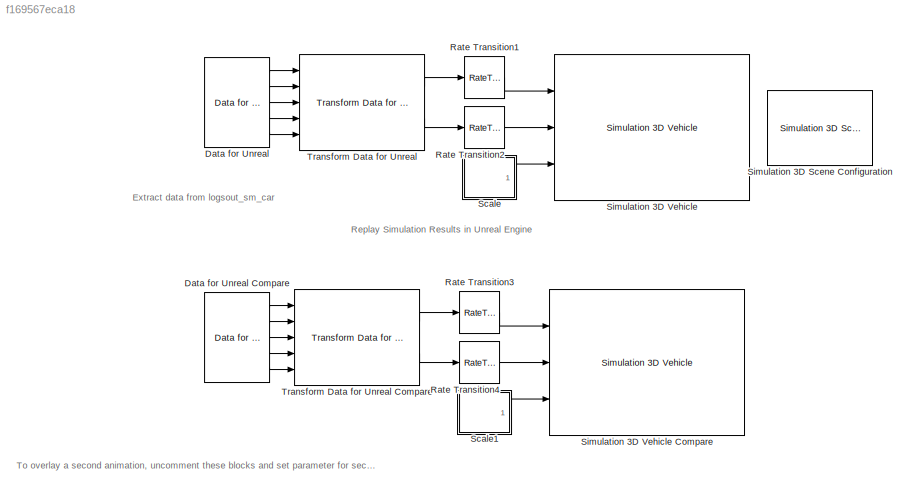
MODEL slx_f169567eca18
KIND model
CONFIG AbsTol = 1e-3
CONFIG EnableMultiTasking = on
CONFIG FixedStep = auto
CONFIG InitFcn = if (~exist('unreal_timeseries','var')) \n  if exist('logsout_sm_car','var')\n     unreal_timeseries = logsout_sm_car.get('Unreal_Timeseries')\n  else\n     error('Data missing from workspace: unreal_timeseries');\n  end\nend\n
CONFIG MaxStep = auto
CONFIG MinStep = auto
CONFIG RelTol = 1e-3
CONFIG SampleTimeConstraint = Unconstrained
CONFIG SolverName = VariableStepAuto
CONFIG StartTime = 0.0
CONFIG StopTime = 25
BLOCK [Reference] Data for Unreal  REF=Vehicle_Visualization/Data for Unreal
From Workspace
  AttributesFormatString = %<unreal_data>
  Ports = [0, 5]
  SourceBlock = Vehicle_Visualization/Data for Unreal\nFrom Workspace
  SourceType = Timeseries data for replay
BLOCK [Reference] Data for Unreal Compare  REF=Vehicle_Visualization/Data for Unreal
From Workspace
  AttributesFormatString = %<unreal_data>
  Commented = on
  Ports = [0, 5]
  SourceBlock = Vehicle_Visualization/Data for Unreal\nFrom Workspace
  SourceType = Timeseries data for replay
BLOCK [RateTransition] Rate Transition1
  Deterministic = off
  OutPortSampleTime = 0.03
BLOCK [RateTransition] Rate Transition2
  Deterministic = off
  OutPortSampleTime = 0.03
BLOCK [RateTransition] Rate Transition3
  Commented = on
  Deterministic = off
  OutPortSampleTime = 0.03
BLOCK [RateTransition] Rate Transition4
  Commented = on
  Deterministic = off
  OutPortSampleTime = 0.03
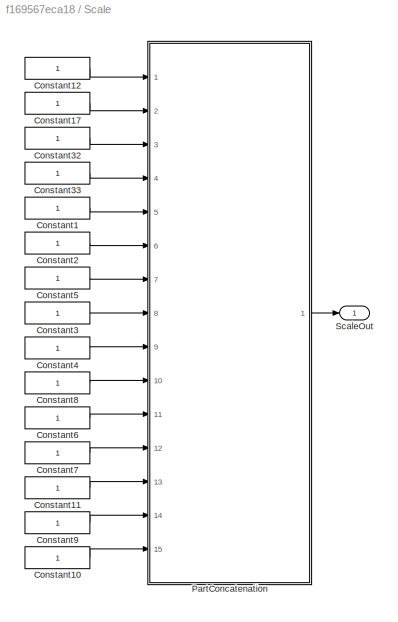
BLOCK [SubSystem] Scale
  Ports = [0, 1]
  RequestExecContextInheritance = off
BLOCK [Constant] Scale/Constant1
  OutDataTypeStr = single
BLOCK [Constant] Scale/Constant10
  OutDataTypeStr = single
BLOCK [Constant] Scale/Constant11
  OutDataTypeStr = single
BLOCK [Constant] Scale/Constant12
  OutDataTypeStr = single
BLOCK [Constant] Scale/Constant17
  OutDataTypeStr = single
BLOCK [Constant] Scale/Constant2
  OutDataTypeStr = single
BLOCK [Constant] Scale/Constant3
  OutDataTypeStr = single
BLOCK [Constant] Scale/Constant32
  OutDataTypeStr = single
BLOCK [Constant] Scale/Constant33
  OutDataTypeStr = single
BLOCK [Constant] Scale/Constant4
  OutDataTypeStr = single
BLOCK [Constant] Scale/Constant5
  OutDataTypeStr = single
BLOCK [Constant] Scale/Constant6
  OutDataTypeStr = single
BLOCK [Constant] Scale/Constant7
  OutDataTypeStr = single
BLOCK [Constant] Scale/Constant8
  OutDataTypeStr = single
BLOCK [Constant] Scale/Constant9
  OutDataTypeStr = single
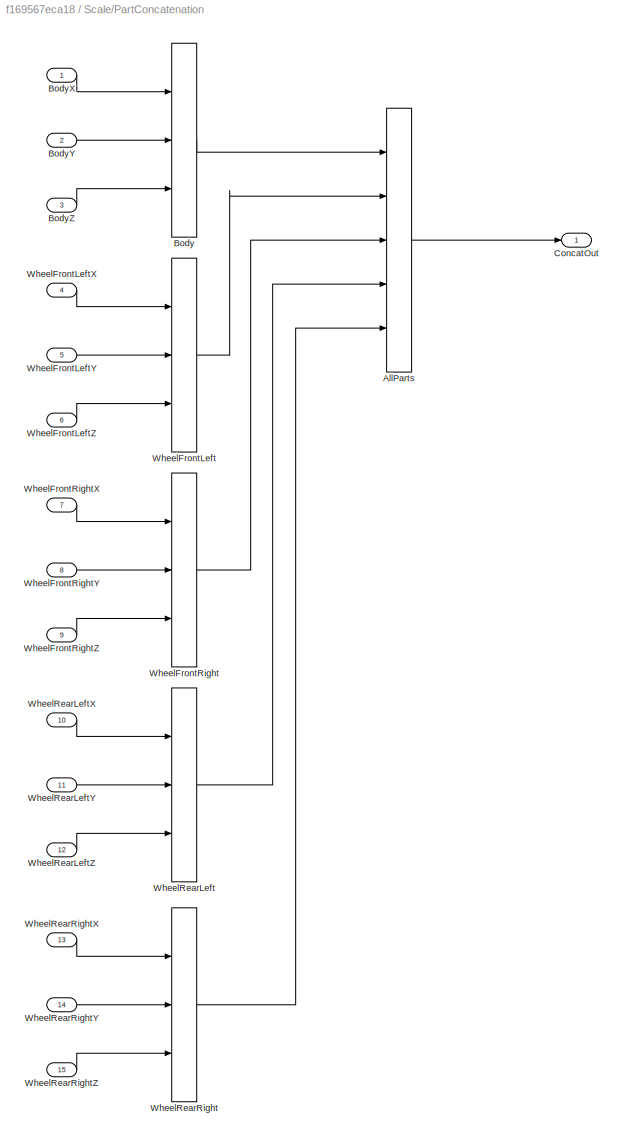
BLOCK [SubSystem] Scale/PartConcatenation
  Ports = [15, 1]
  RequestExecContextInheritance = off
BLOCK [Concatenate] Scale/PartConcatenation/AllParts
  Mode = Multidimensional array
  NumInputs = 5
  Ports = [5, 1]
BLOCK [Concatenate] Scale/PartConcatenation/Body
  ConcatenateDimension = 2
  Mode = Multidimensional array
  NumInputs = 3
  Ports = [3, 1]
BLOCK [Inport] Scale/PartConcatenation/BodyX
BLOCK [Inport] Scale/PartConcatenation/BodyY
  Port = 2
BLOCK [Inport] Scale/PartConcatenation/BodyZ
  Port = 3
BLOCK [Outport] Scale/PartConcatenation/ConcatOut
  VectorParamsAs1DForOutWhenUnconnected = off
BLOCK [Concatenate] Scale/PartConcatenation/WheelFrontLeft
  ConcatenateDimension = 2
  Mode = Multidimensional array
  NumInputs = 3
  Ports = [3, 1]
BLOCK [Inport] Scale/PartConcatenation/WheelFrontLeftX
  Port = 4
BLOCK [Inport] Scale/PartConcatenation/WheelFrontLeftY
  Port = 5
BLOCK [Inport] Scale/PartConcatenation/WheelFrontLeftZ
  Port = 6
BLOCK [Concatenate] Scale/PartConcatenation/WheelFrontRight
  ConcatenateDimension = 2
  Mode = Multidimensional array
  NumInputs = 3
  Ports = [3, 1]
BLOCK [Inport] Scale/PartConcatenation/WheelFrontRightX
  Port = 7
BLOCK [Inport] Scale/PartConcatenation/WheelFrontRightY
  Port = 8
BLOCK [Inport] Scale/PartConcatenation/WheelFrontRightZ
  Port = 9
BLOCK [Concatenate] Scale/PartConcatenation/WheelRearLeft
  ConcatenateDimension = 2
  Mode = Multidimensional array
  NumInputs = 3
  Ports = [3, 1]
BLOCK [Inport] Scale/PartConcatenation/WheelRearLeftX
  Port = 10
BLOCK [Inport] Scale/PartConcatenation/WheelRearLeftY
  Port = 11
BLOCK [Inport] Scale/PartConcatenation/WheelRearLeftZ
  Port = 12
BLOCK [Concatenate] Scale/PartConcatenation/WheelRearRight
  ConcatenateDimension = 2
  Mode = Multidimensional array
  NumInputs = 3
  Ports = [3, 1]
BLOCK [Inport] Scale/PartConcatenation/WheelRearRightX
  Port = 13
BLOCK [Inport] Scale/PartConcatenation/WheelRearRightY
  Port = 14
BLOCK [Inport] Scale/PartConcatenation/WheelRearRightZ
  Port = 15
BLOCK [Outport] Scale/ScaleOut
  VectorParamsAs1DForOutWhenUnconnected = off
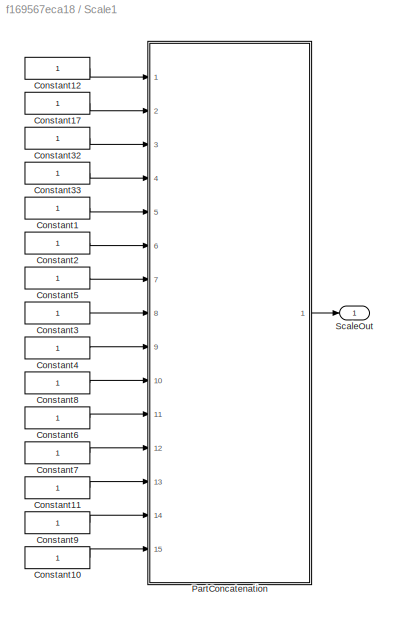
BLOCK [SubSystem] Scale1
  Commented = on
  Ports = [0, 1]
  RequestExecContextInheritance = off
BLOCK [Constant] Scale1/Constant1
  OutDataTypeStr = single
BLOCK [Constant] Scale1/Constant10
  OutDataTypeStr = single
BLOCK [Constant] Scale1/Constant11
  OutDataTypeStr = single
BLOCK [Constant] Scale1/Constant12
  OutDataTypeStr = single
BLOCK [Constant] Scale1/Constant17
  OutDataTypeStr = single
BLOCK [Constant] Scale1/Constant2
  OutDataTypeStr = single
BLOCK [Constant] Scale1/Constant3
  OutDataTypeStr = single
BLOCK [Constant] Scale1/Constant32
  OutDataTypeStr = single
BLOCK [Constant] Scale1/Constant33
  OutDataTypeStr = single
BLOCK [Constant] Scale1/Constant4
  OutDataTypeStr = single
BLOCK [Constant] Scale1/Constant5
  OutDataTypeStr = single
BLOCK [Constant] Scale1/Constant6
  OutDataTypeStr = single
BLOCK [Constant] Scale1/Constant7
  OutDataTypeStr = single
BLOCK [Constant] Scale1/Constant8
  OutDataTypeStr = single
BLOCK [Constant] Scale1/Constant9
  OutDataTypeStr = single
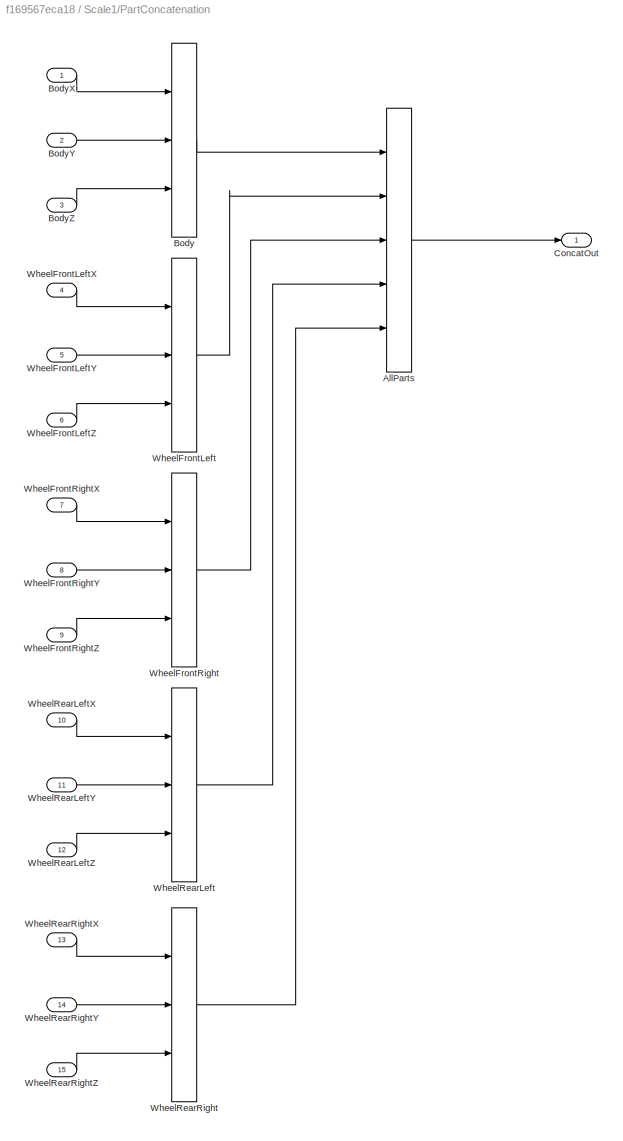
BLOCK [SubSystem] Scale1/PartConcatenation
  Ports = [15, 1]
  RequestExecContextInheritance = off
BLOCK [Concatenate] Scale1/PartConcatenation/AllParts
  Mode = Multidimensional array
  NumInputs = 5
  Ports = [5, 1]
BLOCK [Concatenate] Scale1/PartConcatenation/Body
  ConcatenateDimension = 2
  Mode = Multidimensional array
  NumInputs = 3
  Ports = [3, 1]
BLOCK [Inport] Scale1/PartConcatenation/BodyX
BLOCK [Inport] Scale1/PartConcatenation/BodyY
  Port = 2
BLOCK [Inport] Scale1/PartConcatenation/BodyZ
  Port = 3
BLOCK [Outport] Scale1/PartConcatenation/ConcatOut
  VectorParamsAs1DForOutWhenUnconnected = off
BLOCK [Concatenate] Scale1/PartConcatenation/WheelFrontLeft
  ConcatenateDimension = 2
  Mode = Multidimensional array
  NumInputs = 3
  Ports = [3, 1]
BLOCK [Inport] Scale1/PartConcatenation/WheelFrontLeftX
  Port = 4
BLOCK [Inport] Scale1/PartConcatenation/WheelFrontLeftY
  Port = 5
BLOCK [Inport] Scale1/PartConcatenation/WheelFrontLeftZ
  Port = 6
BLOCK [Concatenate] Scale1/PartConcatenation/WheelFrontRight
  ConcatenateDimension = 2
  Mode = Multidimensional array
  NumInputs = 3
  Ports = [3, 1]
BLOCK [Inport] Scale1/PartConcatenation/WheelFrontRightX
  Port = 7
BLOCK [Inport] Scale1/PartConcatenation/WheelFrontRightY
  Port = 8
BLOCK [Inport] Scale1/PartConcatenation/WheelFrontRightZ
  Port = 9
BLOCK [Concatenate] Scale1/PartConcatenation/WheelRearLeft
  ConcatenateDimension = 2
  Mode = Multidimensional array
  NumInputs = 3
  Ports = [3, 1]
BLOCK [Inport] Scale1/PartConcatenation/WheelRearLeftX
  Port = 10
BLOCK [Inport] Scale1/PartConcatenation/WheelRearLeftY
  Port = 11
BLOCK [Inport] Scale1/PartConcatenation/WheelRearLeftZ
  Port = 12
BLOCK [Concatenate] Scale1/PartConcatenation/WheelRearRight
  ConcatenateDimension = 2
  Mode = Multidimensional array
  NumInputs = 3
  Ports = [3, 1]
BLOCK [Inport] Scale1/PartConcatenation/WheelRearRightX
  Port = 13
BLOCK [Inport] Scale1/PartConcatenation/WheelRearRightY
  Port = 14
BLOCK [Inport] Scale1/PartConcatenation/WheelRearRightZ
  Port = 15
BLOCK [Outport] Scale1/ScaleOut
  VectorParamsAs1DForOutWhenUnconnected = off
BLOCK [Reference] Simulation 3D Scene Configuration  REF=sim3dlib/Simulation 3D Scene Configuration
  Ports = []
  Priority = 0
  SourceBlock = sim3dlib/Simulation 3D Scene Configuration
  SourceProductBaseCode = VE,AE,DR,UV,VE
  SourceType = Simulation 3D Scene Configuration
BLOCK [Reference] Simulation 3D Vehicle  REF=sim3dautolib/Simulation 3D Vehicle
  Ports = [3]
  Priority = -1
  SourceBlock = sim3dautolib/Simulation 3D Vehicle
  SourceProductBaseCode = VE,AE,DR,UV,VE
  SourceType = Simulation 3D Vehicle
BLOCK [Reference] Simulation 3D Vehicle Compare  REF=sim3dautolib/Simulation 3D Vehicle
  Commented = on
  Ports = [3]
  Priority = -1
  SourceBlock = sim3dautolib/Simulation 3D Vehicle
  SourceProductBaseCode = VE,AE,DR,UV,VE
  SourceType = Simulation 3D Vehicle
BLOCK [Reference] Transform Data for Unreal  REF=Vehicle_Visualization/Transform Data
for Unreal
  Ports = [5, 2]
  SourceBlock = Vehicle_Visualization/Transform Data\nfor Unreal
  SourceType = SubSystem
BLOCK [Reference] Transform Data for Unreal Compare  REF=Vehicle_Visualization/Transform Data
for Unreal
  Commented = on
  Ports = [5, 2]
  SourceBlock = Vehicle_Visualization/Transform Data\nfor Unreal
  SourceType = SubSystem
ANNOTATION (root): Extract data from logsout_sm_car
ANNOTATION (root): Replay Simulation Results in Unreal Engine
ANNOTATION (root): To overlay a second animation, uncomment these blocks and set parameter for second set of data for replay.
LINE Data for Unreal Compare:1 -> Transform Data for Unreal Compare:1
LINE Data for Unreal Compare:2 -> Transform Data for Unreal Compare:2
LINE Data for Unreal Compare:3 -> Transform Data for Unreal Compare:3
LINE Data for Unreal Compare:4 -> Transform Data for Unreal Compare:4
LINE Data for Unreal Compare:5 -> Transform Data for Unreal Compare:5
LINE Data for Unreal:1 -> Transform Data for Unreal:1
LINE Data for Unreal:2 -> Transform Data for Unreal:2
LINE Data for Unreal:3 -> Transform Data for Unreal:3
LINE Data for Unreal:4 -> Transform Data for Unreal:4
LINE Data for Unreal:5 -> Transform Data for Unreal:5
LINE Rate Transition1:1 -> Simulation 3D Vehicle:1
LINE Rate Transition2:1 -> Simulation 3D Vehicle:2
LINE Rate Transition3:1 -> Simulation 3D Vehicle Compare:1
LINE Rate Transition4:1 -> Simulation 3D Vehicle Compare:2
LINE Scale/Constant10:1 -> Scale/PartConcatenation:15
LINE Scale/Constant11:1 -> Scale/PartConcatenation:13
LINE Scale/Constant12:1 -> Scale/PartConcatenation:1
LINE Scale/Constant17:1 -> Scale/PartConcatenation:2
LINE Scale/Constant1:1 -> Scale/PartConcatenation:5
LINE Scale/Constant2:1 -> Scale/PartConcatenation:6
LINE Scale/Constant32:1 -> Scale/PartConcatenation:3
LINE Scale/Constant33:1 -> Scale/PartConcatenation:4
LINE Scale/Constant3:1 -> Scale/PartConcatenation:8
LINE Scale/Constant4:1 -> Scale/PartConcatenation:9
LINE Scale/Constant5:1 -> Scale/PartConcatenation:7
LINE Scale/Constant6:1 -> Scale/PartConcatenation:11
LINE Scale/Constant7:1 -> Scale/PartConcatenation:12
LINE Scale/Constant8:1 -> Scale/PartConcatenation:10
LINE Scale/Constant9:1 -> Scale/PartConcatenation:14
LINE Scale/PartConcatenation/AllParts:1 -> Scale/PartConcatenation/ConcatOut:1
LINE Scale/PartConcatenation/Body:1 -> Scale/PartConcatenation/AllParts:1
LINE Scale/PartConcatenation/BodyX:1 -> Scale/PartConcatenation/Body:1
LINE Scale/PartConcatenation/BodyY:1 -> Scale/PartConcatenation/Body:2
LINE Scale/PartConcatenation/BodyZ:1 -> Scale/PartConcatenation/Body:3
LINE Scale/PartConcatenation/WheelFrontLeft:1 -> Scale/PartConcatenation/AllParts:2
LINE Scale/PartConcatenation/WheelFrontLeftX:1 -> Scale/PartConcatenation/WheelFrontLeft:1
LINE Scale/PartConcatenation/WheelFrontLeftY:1 -> Scale/PartConcatenation/WheelFrontLeft:2
LINE Scale/PartConcatenation/WheelFrontLeftZ:1 -> Scale/PartConcatenation/WheelFrontLeft:3
LINE Scale/PartConcatenation/WheelFrontRight:1 -> Scale/PartConcatenation/AllParts:3
LINE Scale/PartConcatenation/WheelFrontRightX:1 -> Scale/PartConcatenation/WheelFrontRight:1
LINE Scale/PartConcatenation/WheelFrontRightY:1 -> Scale/PartConcatenation/WheelFrontRight:2
LINE Scale/PartConcatenation/WheelFrontRightZ:1 -> Scale/PartConcatenation/WheelFrontRight:3
LINE Scale/PartConcatenation/WheelRearLeft:1 -> Scale/PartConcatenation/AllParts:4
LINE Scale/PartConcatenation/WheelRearLeftX:1 -> Scale/PartConcatenation/WheelRearLeft:1
LINE Scale/PartConcatenation/WheelRearLeftY:1 -> Scale/PartConcatenation/WheelRearLeft:2
LINE Scale/PartConcatenation/WheelRearLeftZ:1 -> Scale/PartConcatenation/WheelRearLeft:3
LINE Scale/PartConcatenation/WheelRearRight:1 -> Scale/PartConcatenation/AllParts:5
LINE Scale/PartConcatenation/WheelRearRightX:1 -> Scale/PartConcatenation/WheelRearRight:1
LINE Scale/PartConcatenation/WheelRearRightY:1 -> Scale/PartConcatenation/WheelRearRight:2
LINE Scale/PartConcatenation/WheelRearRightZ:1 -> Scale/PartConcatenation/WheelRearRight:3
LINE Scale/PartConcatenation:1 -> Scale/ScaleOut:1
LINE Scale1/Constant10:1 -> Scale1/PartConcatenation:15
LINE Scale1/Constant11:1 -> Scale1/PartConcatenation:13
LINE Scale1/Constant12:1 -> Scale1/PartConcatenation:1
LINE Scale1/Constant17:1 -> Scale1/PartConcatenation:2
LINE Scale1/Constant1:1 -> Scale1/PartConcatenation:5
LINE Scale1/Constant2:1 -> Scale1/PartConcatenation:6
LINE Scale1/Constant32:1 -> Scale1/PartConcatenation:3
LINE Scale1/Constant33:1 -> Scale1/PartConcatenation:4
LINE Scale1/Constant3:1 -> Scale1/PartConcatenation:8
LINE Scale1/Constant4:1 -> Scale1/PartConcatenation:9
LINE Scale1/Constant5:1 -> Scale1/PartConcatenation:7
LINE Scale1/Constant6:1 -> Scale1/PartConcatenation:11
LINE Scale1/Constant7:1 -> Scale1/PartConcatenation:12
LINE Scale1/Constant8:1 -> Scale1/PartConcatenation:10
LINE Scale1/Constant9:1 -> Scale1/PartConcatenation:14
LINE Scale1/PartConcatenation/AllParts:1 -> Scale1/PartConcatenation/ConcatOut:1
LINE Scale1/PartConcatenation/Body:1 -> Scale1/PartConcatenation/AllParts:1
LINE Scale1/PartConcatenation/BodyX:1 -> Scale1/PartConcatenation/Body:1
LINE Scale1/PartConcatenation/BodyY:1 -> Scale1/PartConcatenation/Body:2
LINE Scale1/PartConcatenation/BodyZ:1 -> Scale1/PartConcatenation/Body:3
LINE Scale1/PartConcatenation/WheelFrontLeft:1 -> Scale1/PartConcatenation/AllParts:2
LINE Scale1/PartConcatenation/WheelFrontLeftX:1 -> Scale1/PartConcatenation/WheelFrontLeft:1
LINE Scale1/PartConcatenation/WheelFrontLeftY:1 -> Scale1/PartConcatenation/WheelFrontLeft:2
LINE Scale1/PartConcatenation/WheelFrontLeftZ:1 -> Scale1/PartConcatenation/WheelFrontLeft:3
LINE Scale1/PartConcatenation/WheelFrontRight:1 -> Scale1/PartConcatenation/AllParts:3
LINE Scale1/PartConcatenation/WheelFrontRightX:1 -> Scale1/PartConcatenation/WheelFrontRight:1
LINE Scale1/PartConcatenation/WheelFrontRightY:1 -> Scale1/PartConcatenation/WheelFrontRight:2
LINE Scale1/PartConcatenation/WheelFrontRightZ:1 -> Scale1/PartConcatenation/WheelFrontRight:3
LINE Scale1/PartConcatenation/WheelRearLeft:1 -> Scale1/PartConcatenation/AllParts:4
LINE Scale1/PartConcatenation/WheelRearLeftX:1 -> Scale1/PartConcatenation/WheelRearLeft:1
LINE Scale1/PartConcatenation/WheelRearLeftY:1 -> Scale1/PartConcatenation/WheelRearLeft:2
LINE Scale1/PartConcatenation/WheelRearLeftZ:1 -> Scale1/PartConcatenation/WheelRearLeft:3
LINE Scale1/PartConcatenation/WheelRearRight:1 -> Scale1/PartConcatenation/AllParts:5
LINE Scale1/PartConcatenation/WheelRearRightX:1 -> Scale1/PartConcatenation/WheelRearRight:1
LINE Scale1/PartConcatenation/WheelRearRightY:1 -> Scale1/PartConcatenation/WheelRearRight:2
LINE Scale1/PartConcatenation/WheelRearRightZ:1 -> Scale1/PartConcatenation/WheelRearRight:3
LINE Scale1/PartConcatenation:1 -> Scale1/ScaleOut:1
LINE Scale1:1 -> Simulation 3D Vehicle Compare:3
LINE Scale:1 -> Simulation 3D Vehicle:3
LINE Transform Data for Unreal Compare:1 -> Rate Transition3:1
LINE Transform Data for Unreal Compare:2 -> Rate Transition4:1
LINE Transform Data for Unreal:1 -> Rate Transition1:1
LINE Transform Data for Unreal:2 -> Rate Transition2:1
